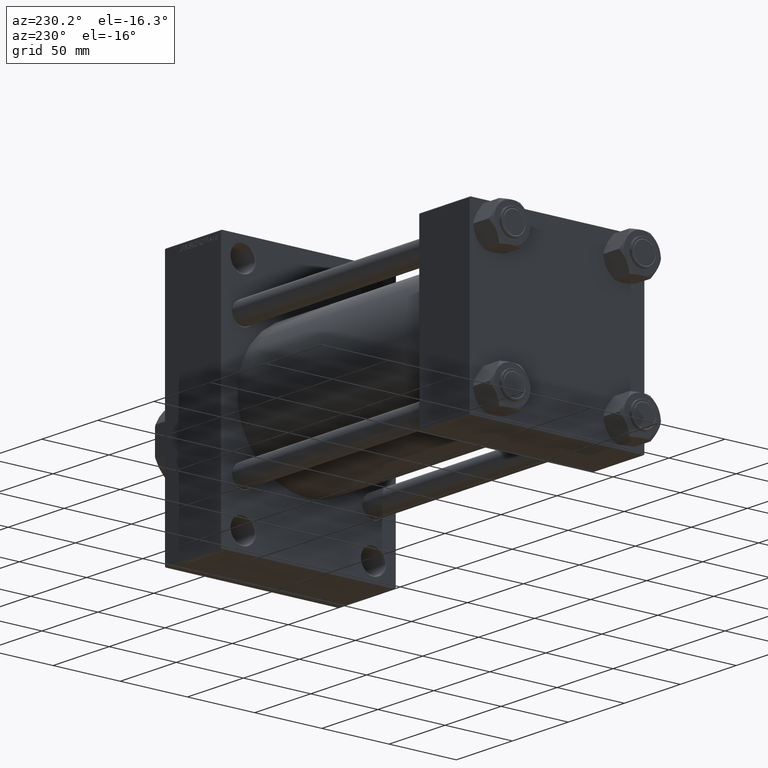
[diagram: clean part render]
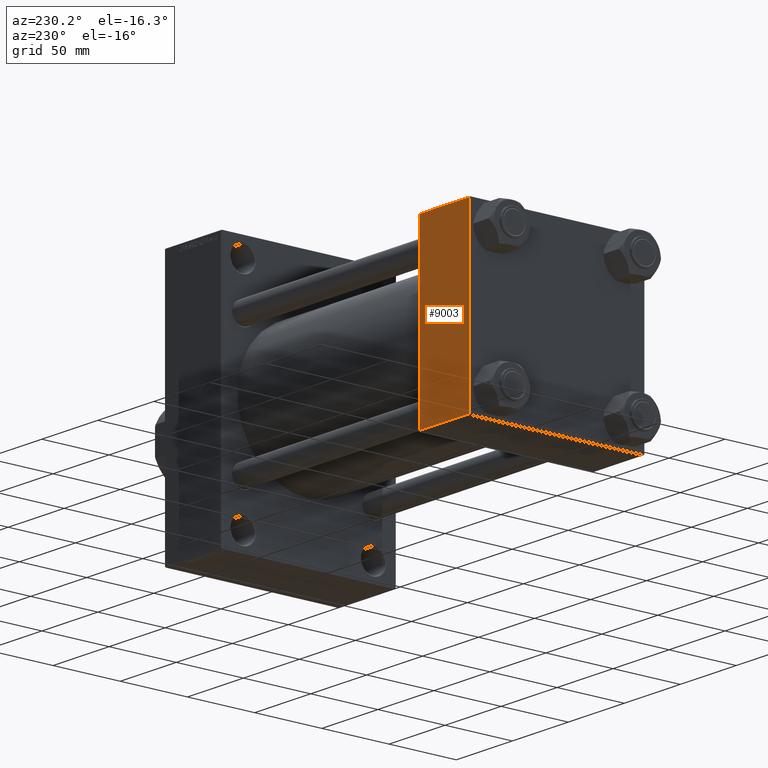
[diagram: same view with one face highlighted and labeled with its STEP entity id]
A machine part, auxiliary view. The second image highlights one B-rep face of the part: STEP entity #9003.
In plain terms, the highlighted planar face has unit normal (0, 1, 0).
Its self-contained STEP definition (entity closure, byte-faithful):
#189 = DIRECTION ( 'NONE',  ( -0.000000000000000000, 1.000000000000000000, 0.000000000000000000 ) ) ;
#4138 = LINE ( 'NONE', #18834, #22430 ) ;
#5780 = DIRECTION ( 'NONE',  ( 1.000000000000000000, 0.000000000000000000, 0.000000000000000000 ) ) ;
#6656 = EDGE_CURVE ( 'NONE', #25266, #28633, #10836, .T. ) ;
#7773 = AXIS2_PLACEMENT_3D ( 'NONE', #44117, #189, #11297 ) ;
#8116 = VECTOR ( 'NONE', #22120, 1000.000000000000000 ) ;
#9003 = ADVANCED_FACE ( 'NONE', ( #28914 ), #29382, .T. ) ;
#10126 = VERTEX_POINT ( 'NONE', #21411 ) ;
#10836 = LINE ( 'NONE', #14675, #46995 ) ;
#11297 = DIRECTION ( 'NONE',  ( 0.000000000000000000, -0.000000000000000000, 1.000000000000000000 ) ) ;
#11475 = ORIENTED_EDGE ( 'NONE', *, *, #6656, .F. ) ;
#14062 = EDGE_LOOP ( 'NONE', ( #29996, #32791, #11475, #32398 ) ) ;
#14675 = CARTESIAN_POINT ( 'NONE',  ( 0.000000000000000000, 65.00000000000000000, 65.00000000000001421 ) ) ;
#15993 = EDGE_CURVE ( 'NONE', #10126, #28633, #26216, .T. ) ;
#18834 = CARTESIAN_POINT ( 'NONE',  ( 45.00000000000000000, 65.00000000000000000, 65.00000000000001421 ) ) ;
#21411 = CARTESIAN_POINT ( 'NONE',  ( 45.00000000000000000, 65.00000000000000000, -64.49999999999995737 ) ) ;
#21700 = DIRECTION ( 'NONE',  ( 0.000000000000000000, 0.000000000000000000, -1.000000000000000000 ) ) ;
#22120 = DIRECTION ( 'NONE',  ( -1.000000000000000000, 0.000000000000000000, 0.000000000000000000 ) ) ;
#22430 = VECTOR ( 'NONE', #44195, 1000.000000000000000 ) ;
#23860 = LINE ( 'NONE', #27960, #31773 ) ;
#25266 = VERTEX_POINT ( 'NONE', #44758 ) ;
#26216 = LINE ( 'NONE', #36833, #8116 ) ;
#27960 = CARTESIAN_POINT ( 'NONE',  ( 45.00000000000000000, 65.00000000000000000, 64.49999999999998579 ) ) ;
#28633 = VERTEX_POINT ( 'NONE', #42260 ) ;
#28635 = VERTEX_POINT ( 'NONE', #35475 ) ;
#28914 = FACE_OUTER_BOUND ( 'NONE', #14062, .T. ) ;
#29382 = PLANE ( 'NONE',  #7773 ) ;
#29996 = ORIENTED_EDGE ( 'NONE', *, *, #37407, .T. ) ;
#31773 = VECTOR ( 'NONE', #5780, 1000.000000000000000 ) ;
#32398 = ORIENTED_EDGE ( 'NONE', *, *, #44916, .T. ) ;
#32791 = ORIENTED_EDGE ( 'NONE', *, *, #15993, .T. ) ;
#35475 = CARTESIAN_POINT ( 'NONE',  ( 45.00000000000000000, 65.00000000000000000, 64.49999999999998579 ) ) ;
#36833 = CARTESIAN_POINT ( 'NONE',  ( 45.00000000000000000, 65.00000000000000000, -64.49999999999995737 ) ) ;
#37407 = EDGE_CURVE ( 'NONE', #28635, #10126, #4138, .T. ) ;
#42260 = CARTESIAN_POINT ( 'NONE',  ( 0.000000000000000000, 65.00000000000000000, -64.49999999999995737 ) ) ;
#44117 = CARTESIAN_POINT ( 'NONE',  ( 45.00000000000000000, 65.00000000000000000, 65.00000000000001421 ) ) ;
#44195 = DIRECTION ( 'NONE',  ( 0.000000000000000000, 0.000000000000000000, -1.000000000000000000 ) ) ;
#44758 = CARTESIAN_POINT ( 'NONE',  ( 0.000000000000000000, 65.00000000000000000, 64.49999999999998579 ) ) ;
#44916 = EDGE_CURVE ( 'NONE', #25266, #28635, #23860, .T. ) ;
#46995 = VECTOR ( 'NONE', #21700, 1000.000000000000000 ) ;